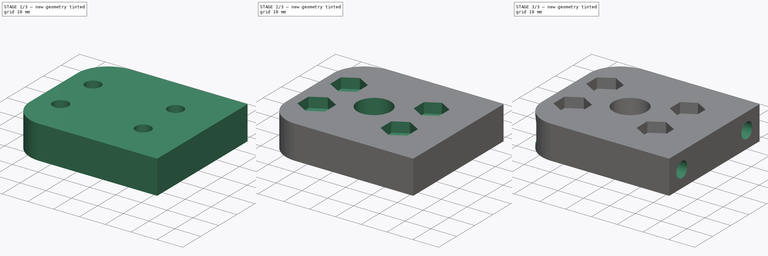
[diagram: build sequence overview — one tinted view per stage of 3, left to right]
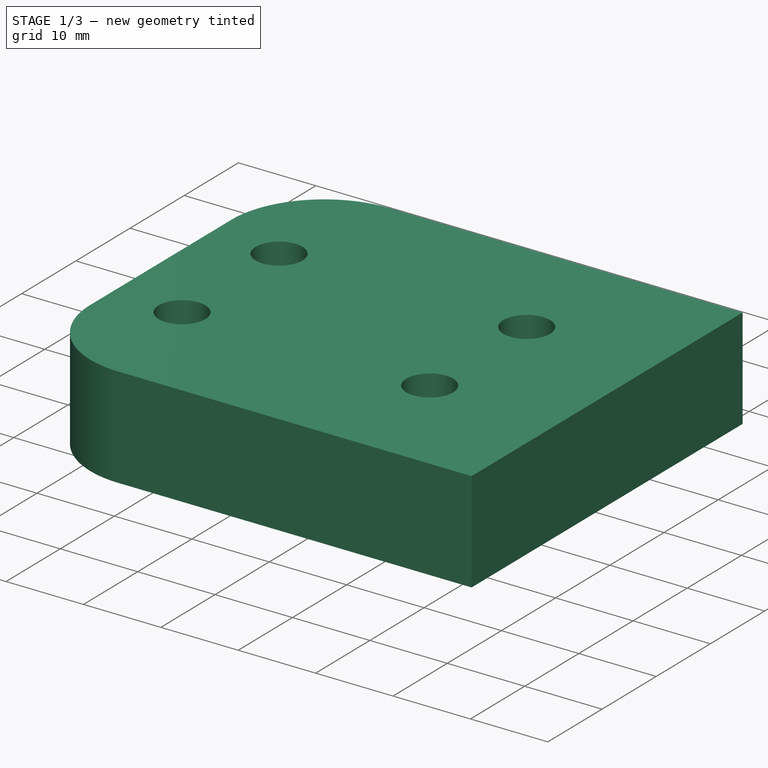
[diagram: stage 1 of 3 — iso view after this stage's code; geometry added in this stage tinted green]
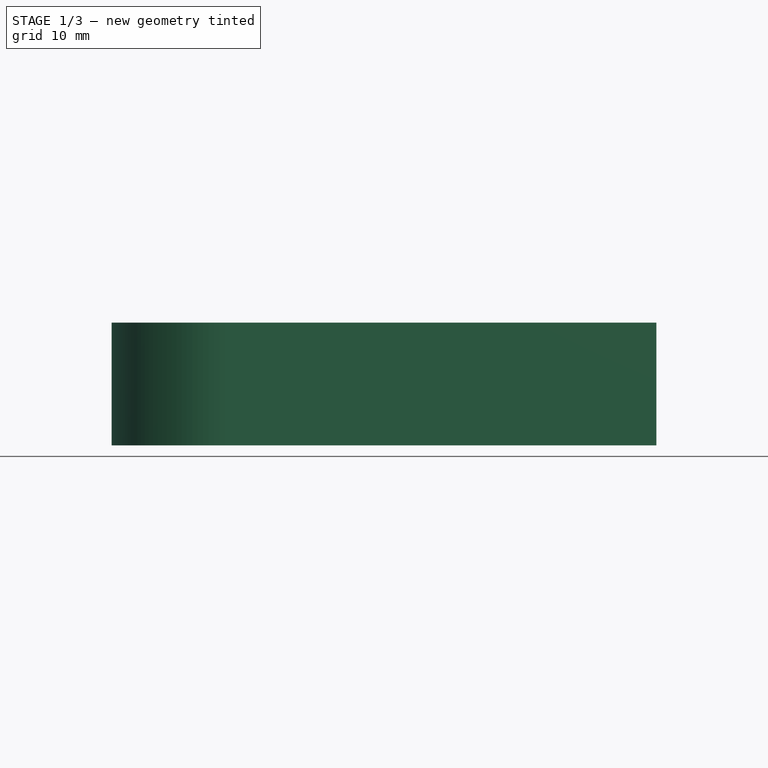
[diagram: stage 1 of 3 — front view after this stage's code; geometry added in this stage tinted green]
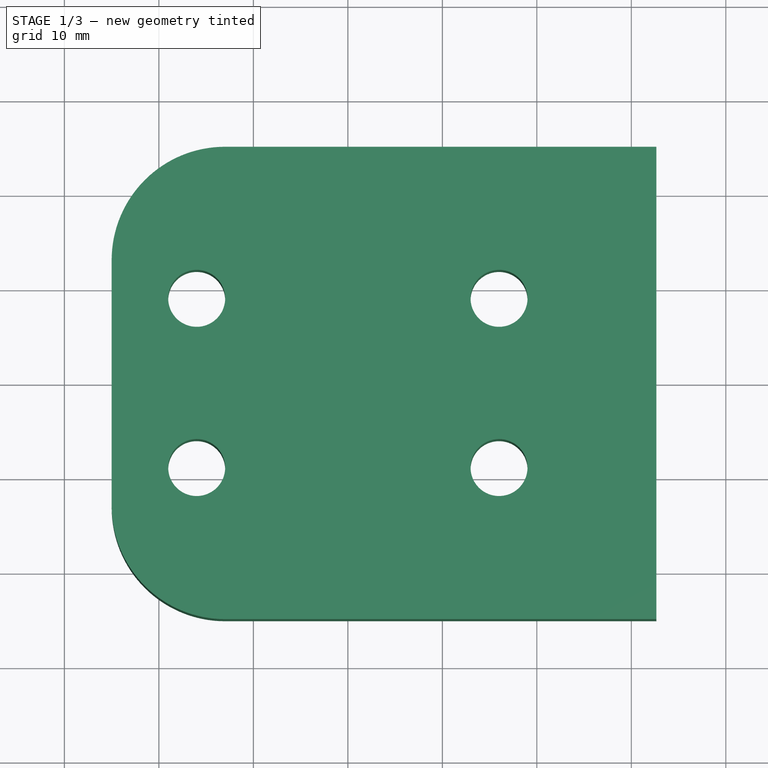
[diagram: stage 1 of 3 — top view after this stage's code; geometry added in this stage tinted green]
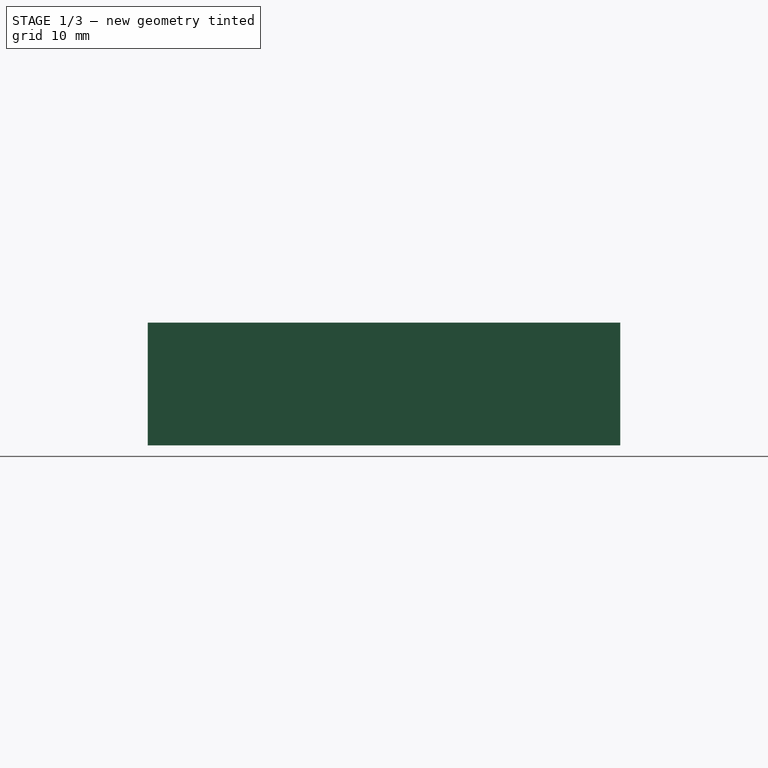
[diagram: stage 1 of 3 — right view after this stage's code; geometry added in this stage tinted green]
FCSTD DOCUMENT  (FreeCAD 0.20R29410 (Git))
Label: MainScrewLeadNutHolderSides
License: All rights reserved
LicenseURL: http://en.wikipedia.org/wiki/All_rights_reserved
objects: Sketcher::SketchObject×7, PartDesign::Pocket×6, PartDesign::Pad×1, PartDesign::Fillet×1, PartDesign::Body×1
note: 24 computed .brp shape members not serialized (recipe doc carries the construction recipe); baked Part::Feature solids carry a one-line shape summary decoded from their .brp

FEATURE [Sketcher::SketchObject] Sketch008
  FullyConstrained = true
  MapMode = 5
  Support = -> [XY_Plane001]
  sketch-geometry (7):
    g0: LineSegment StartX=-25 StartY=25 StartZ=0 EndX=32.65 EndY=25 EndZ=0
    g1: LineSegment StartX=32.65 StartY=25 StartZ=0 EndX=32.65 EndY=-25 EndZ=0
    g2: LineSegment StartX=32.65 StartY=-25 StartZ=0 EndX=-25 EndY=-25 EndZ=0
    g3: LineSegment StartX=-25 StartY=-25 StartZ=0 EndX=-25 EndY=25 EndZ=0
    g4: LineSegment StartX=0 StartY=2e-16 StartZ=0 EndX=0 EndY=25 EndZ=0
    g5: LineSegment StartX=0 StartY=2e-16 StartZ=0 EndX=-25 EndY=2e-16 EndZ=0
    g6: LineSegment StartX=0 StartY=2e-16 StartZ=0 EndX=0 EndY=-25 EndZ=0
  constraints (21):
    c: Coincident(g0,g1)
    c: Coincident(g1,g2)
    c: Coincident(g2,g3)
    c: Coincident(g3,g0)
    c: Horizontal(g0)
    c: Horizontal(g2)
    c: Vertical(g1)
    c: Vertical(g3)
    c: DistanceX(g0,g0) = 57.65
    c: DistanceY(g3,g3) = 50
    c: Coincident(g4,g-1)
    c: PointOnObject(g4,g0)
    c: Vertical(g4)
    c: Coincident(g5,g4)
    c: PointOnObject(g5,g3)
    c: Horizontal(g5)
    c: Equal(g4,g5)
    c: Coincident(g6,g4)
    c: PointOnObject(g6,g2)
    c: Vertical(g6)
    c: Equal(g4,g6)
FEATURE [PartDesign::Pad] Pad
  Direction = (0,0,1)
  Length = 13
  Length2 = 10
  Profile = -> Sketch008
  ReferenceAxis = -> Sketch008 [N_Axis]
  Type = 0
FEATURE [Sketcher::SketchObject] Sketch009
  FullyConstrained = false
  MapMode = 5
  Placement = pos=(0,0,23.5) rot=(0,0,1;0rad)
  sketch-geometry (10):
    g0: Circle CenterX=-16 CenterY=8.955 CenterZ=0 NormalX=0 NormalY=0 NormalZ=1 AngleXU=0 Radius=3.015
    g1: Circle CenterX=-16 CenterY=-8.955 CenterZ=0 NormalX=0 NormalY=0 NormalZ=1 AngleXU=0 Radius=3.015
    g2: Circle CenterX=16 CenterY=8.955 CenterZ=0 NormalX=0 NormalY=0 NormalZ=1 AngleXU=0 Radius=3.015
    g3: Circle CenterX=16 CenterY=-8.955 CenterZ=0 NormalX=0 NormalY=0 NormalZ=1 AngleXU=0 Radius=3.015
    g4: GeomPoint X=-16 Y=1e-16 Z=0
    g5: GeomPoint X=-1.1e-15 Y=8.955 Z=0
    g6: Circle CenterX=-25 CenterY=15.985 CenterZ=0 NormalX=0 NormalY=0 NormalZ=1 AngleXU=0 Radius=3.015
    g7: LineSegment StartX=-25 StartY=19 StartZ=0 EndX=-25 EndY=25 EndZ=0
    g8: GeomPoint X=-25 Y=12.97 Z=0
    g9: LineSegment StartX=-16 StartY=8.955 StartZ=0 EndX=-16 EndY=11.97 EndZ=0
  constraints (17):
    c: Symmetric(g0,g1,g4)
    c: Symmetric(g0,g2,g5)
    c: Equal(g0,g2)
    c: Equal(g2,g3)
    c: Equal(g3,g1)
    c: Diameter(g2) = 6.03
    c: Equal(g0,g6)
    c: Diameter(g0) = 6.03
    c: PointOnObject(g7,g6)
    c: Vertical(g7)
    c: PointOnObject(g8,g6)
    c: Coincident(g9,g0)
    c: PointOnObject(g9,g0)
    c: Vertical(g9)
    c: DistanceY(g9,g8) = 1
    c: DistanceY(g7,g7) = 6
    c: DistanceX(g7,g0) = 9
FEATURE [PartDesign::Pocket] Pocket
  BaseFeature = -> Pad
  Direction = (0,0,-1)
  Length = 27
  Length2 = 5
  Profile = -> Sketch009
  ReferenceAxis = -> Sketch009 [N_Axis]
  Type = 1
FEATURE [PartDesign::Fillet] Fillet
  Base = -> Pocket [Edge1,Edge5]
  BaseFeature = -> Pocket
  Radius = 12
  SupportTransform = false
  UseAllEdges = false
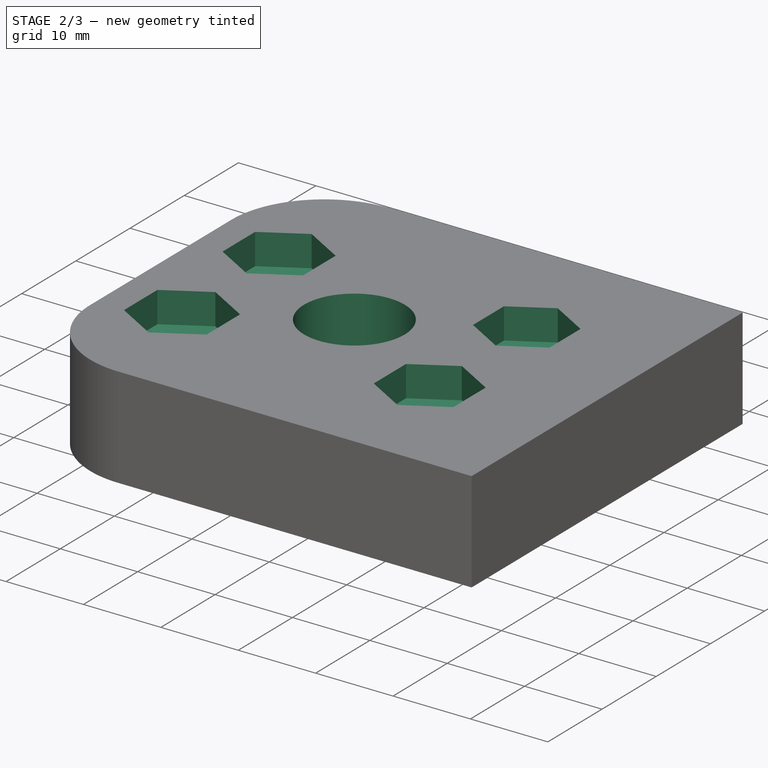
[diagram: stage 2 of 3 — iso view after this stage's code; geometry added in this stage tinted green]
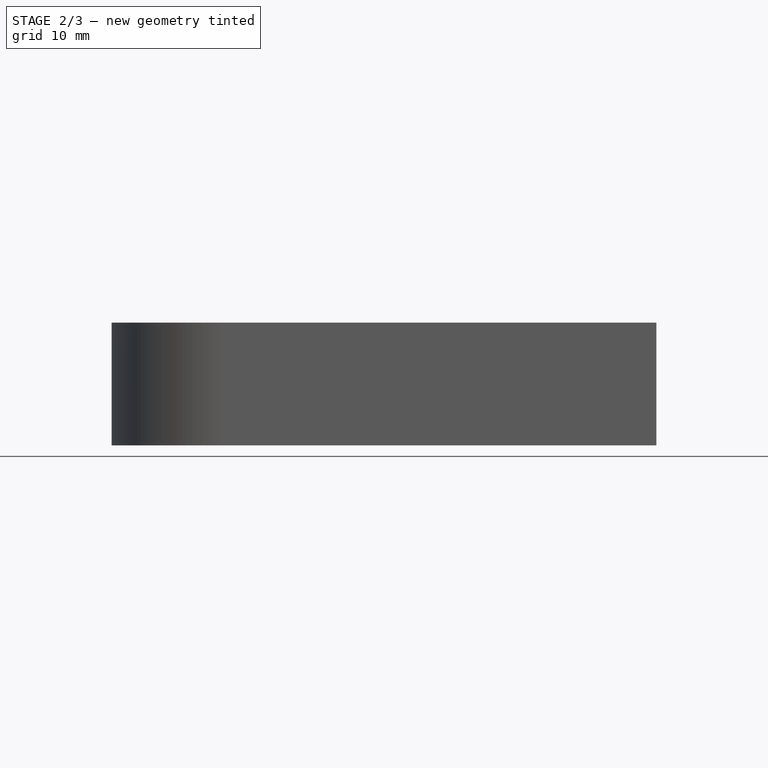
[diagram: stage 2 of 3 — front view after this stage's code; geometry added in this stage tinted green]
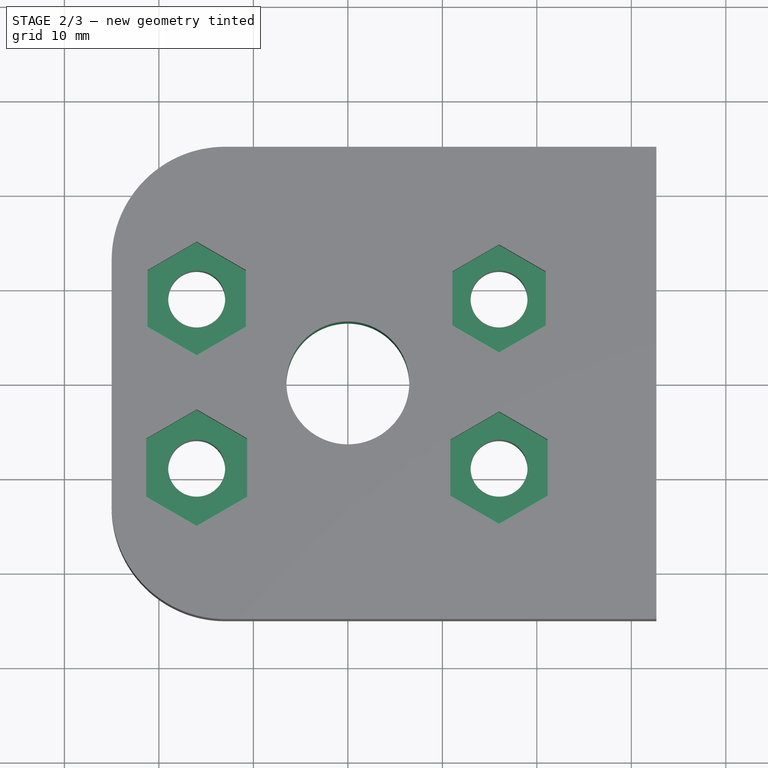
[diagram: stage 2 of 3 — top view after this stage's code; geometry added in this stage tinted green]
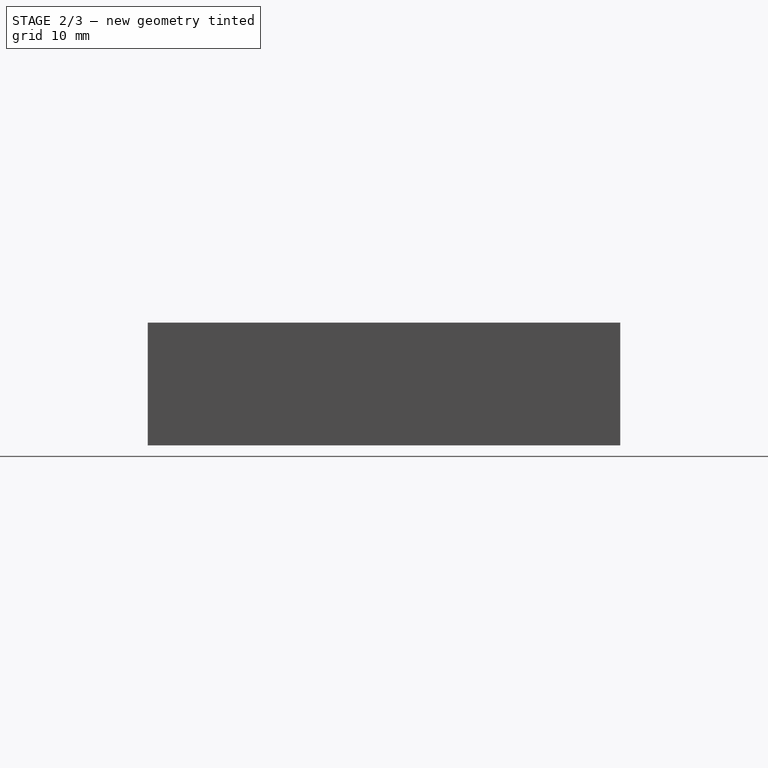
[diagram: stage 2 of 3 — right view after this stage's code; geometry added in this stage tinted green]
FEATURE [Sketcher::SketchObject] Sketch
  FullyConstrained = true
  MapMode = 5
  Placement = pos=(0,0,13) rot=(0,0,1;0rad)
  Support = -> [Fillet]
  sketch-geometry (1):
    g0: Circle CenterX=0 CenterY=0 CenterZ=0 NormalX=0 NormalY=0 NormalZ=1 AngleXU=0 Radius=6.5
  constraints (2):
    c: Coincident(g0,g-1)
    c: Diameter(g0) = 13
FEATURE [PartDesign::Pocket] Pocket001
  BaseFeature = -> Fillet
  Direction = (0,0,-1)
  Length = 5
  Length2 = 5
  Profile = -> Sketch
  ReferenceAxis = -> Sketch [N_Axis]
  Type = 1
FEATURE [Sketcher::SketchObject] Sketch010
  ExternalGeometry = -> [Pocket001]
  FullyConstrained = false
  MapMode = 5
  Placement = pos=(0,0,13) rot=(0,0,1;0rad)
  Support = -> [Pocket001]
  sketch-geometry (28):
    g0: LineSegment StartX=-10.8 StartY=11.9572 StartZ=0 EndX=-16 EndY=14.9594 EndZ=0
    g1: LineSegment StartX=-16 StartY=14.9594 StartZ=0 EndX=-21.2 EndY=11.9572 EndZ=0
    g2: LineSegment StartX=-21.2 StartY=11.9572 StartZ=0 EndX=-21.2 EndY=5.95278 EndZ=0
    g3: LineSegment StartX=-21.2 StartY=5.95278 StartZ=0 EndX=-16 EndY=2.95056 EndZ=0
    g4: LineSegment StartX=-16 StartY=2.95056 StartZ=0 EndX=-10.8 EndY=5.95278 EndZ=0
    g5: LineSegment StartX=-10.8 StartY=5.95278 StartZ=0 EndX=-10.8 EndY=11.9572 EndZ=0
    g6: Circle CenterX=-16 CenterY=8.955 CenterZ=0 NormalX=0 NormalY=0 NormalZ=1 AngleXU=0 Radius=6.00444
    g7: LineSegment StartX=20.9448 StartY=11.8099 StartZ=0 EndX=16 EndY=14.6648 EndZ=0
    g8: LineSegment StartX=16 StartY=14.6648 StartZ=0 EndX=11.0552 EndY=11.8099 EndZ=0
    g9: LineSegment StartX=11.0552 StartY=11.8099 StartZ=0 EndX=11.0552 EndY=6.10011 EndZ=0
    g10: LineSegment StartX=11.0552 StartY=6.10011 StartZ=0 EndX=16 EndY=3.24522 EndZ=0
    g11: LineSegment StartX=16 StartY=3.24522 StartZ=0 EndX=20.9448 EndY=6.10011 EndZ=0
    g12: LineSegment StartX=20.9448 StartY=6.10011 StartZ=0 EndX=20.9448 EndY=11.8099 EndZ=0
    g13: Circle CenterX=16 CenterY=8.955 CenterZ=0 NormalX=0 NormalY=0 NormalZ=1 AngleXU=0 Radius=5.70978
    g14: LineSegment StartX=-10.6627 StartY=-5.87349 StartZ=0 EndX=-16 EndY=-2.79199 EndZ=0
    g15: LineSegment StartX=-16 StartY=-2.79199 StartZ=0 EndX=-21.3373 EndY=-5.87349 EndZ=0
    g16: LineSegment StartX=-21.3373 StartY=-5.87349 StartZ=0 EndX=-21.3373 EndY=-12.0365 EndZ=0
    g17: LineSegment StartX=-21.3373 StartY=-12.0365 StartZ=0 EndX=-16 EndY=-15.118 EndZ=0
    g18: LineSegment StartX=-16 StartY=-15.118 StartZ=0 EndX=-10.6627 EndY=-12.0365 EndZ=0
    g19: LineSegment StartX=-10.6627 StartY=-12.0365 StartZ=0 EndX=-10.6627 EndY=-5.87349 EndZ=0
    g20: Circle CenterX=-16 CenterY=-8.955 CenterZ=0 NormalX=0 NormalY=0 NormalZ=1 AngleXU=0 Radius=6.16301
    g21: LineSegment StartX=21.1465 StartY=-5.98365 StartZ=0 EndX=16 EndY=-3.0123 EndZ=0
    g22: LineSegment StartX=16 StartY=-3.0123 StartZ=0 EndX=10.8535 EndY=-5.98365 EndZ=0
    g23: LineSegment StartX=10.8535 StartY=-5.98365 StartZ=0 EndX=10.8535 EndY=-11.9263 EndZ=0
    g24: LineSegment StartX=10.8535 StartY=-11.9263 StartZ=0 EndX=16 EndY=-14.8977 EndZ=0
    g25: LineSegment StartX=16 StartY=-14.8977 StartZ=0 EndX=21.1465 EndY=-11.9263 EndZ=0
    g26: LineSegment StartX=21.1465 StartY=-11.9263 StartZ=0 EndX=21.1465 EndY=-5.98365 EndZ=0
    g27: Circle CenterX=16 CenterY=-8.955 CenterZ=0 NormalX=0 NormalY=0 NormalZ=1 AngleXU=0 Radius=5.9427
  constraints (61):
    c: Coincident(g0,g1)
    c: Coincident(g1,g2)
    c: Coincident(g2,g3)
    c: Coincident(g3,g4)
    c: Coincident(g4,g5)
    c: Coincident(g5,g0)
    c: Equal(g0, g1-g5) x5
    c: PointOnObject(g0,g6)
    c: PointOnObject(g1,g6)
    c: PointOnObject(g2,g6)
    c: PointOnObject(g3,g6)
    c: PointOnObject(g4,g6)
    c: PointOnObject(g5,g6)
    c: Coincident(g6,g-3)
    c: Coincident(g7,g8)
    c: Coincident(g8,g9)
    c: Coincident(g9,g10)
    c: Coincident(g10,g11)
    c: Coincident(g11,g12)
    c: Coincident(g12,g7)
    c: Equal(g7, g8-g12) x5
    c: PointOnObject(g7,g13)
    c: PointOnObject(g8,g13)
    c: PointOnObject(g9,g13)
    c: PointOnObject(g10,g13)
    c: PointOnObject(g11,g13)
    c: PointOnObject(g12,g13)
    c: Coincident(g13,g-4)
    c: Coincident(g14,g15)
    c: Coincident(g15,g16)
    c: Coincident(g16,g17)
    c: Coincident(g17,g18)
    c: Coincident(g18,g19)
    c: Coincident(g19,g14)
    c: Equal(g14, g15-g19) x5
    c: PointOnObject(g14,g20)
    c: PointOnObject(g15,g20)
    c: PointOnObject(g16,g20)
    c: PointOnObject(g17,g20)
    c: PointOnObject(g18,g20)
    c: PointOnObject(g19,g20)
    c: Coincident(g20,g-5)
    c: Coincident(g21,g22)
    c: Coincident(g22,g23)
    c: Coincident(g23,g24)
    c: Coincident(g24,g25)
    c: Coincident(g25,g26)
    c: Coincident(g26,g21)
    c: Equal(g21, g22-g26) x5
    c: PointOnObject(g21,g27)
    c: PointOnObject(g22,g27)
    c: PointOnObject(g23,g27)
    c: PointOnObject(g24,g27)
    c: PointOnObject(g25,g27)
    c: PointOnObject(g26,g27)
    c: Coincident(g27,g-6)
    c: Vertical(g2)
    c: Vertical(g16)
    c: Vertical(g9)
    c: Vertical(g23)
    c: DistanceX(g1,g0) = 10.4
FEATURE [PartDesign::Pocket] Pocket002
  BaseFeature = -> Pocket001
  Direction = (0,0,-1)
  Length = 4
  Length2 = 5
  Profile = -> Sketch010
  ReferenceAxis = -> Sketch010 [N_Axis]
  Type = 0
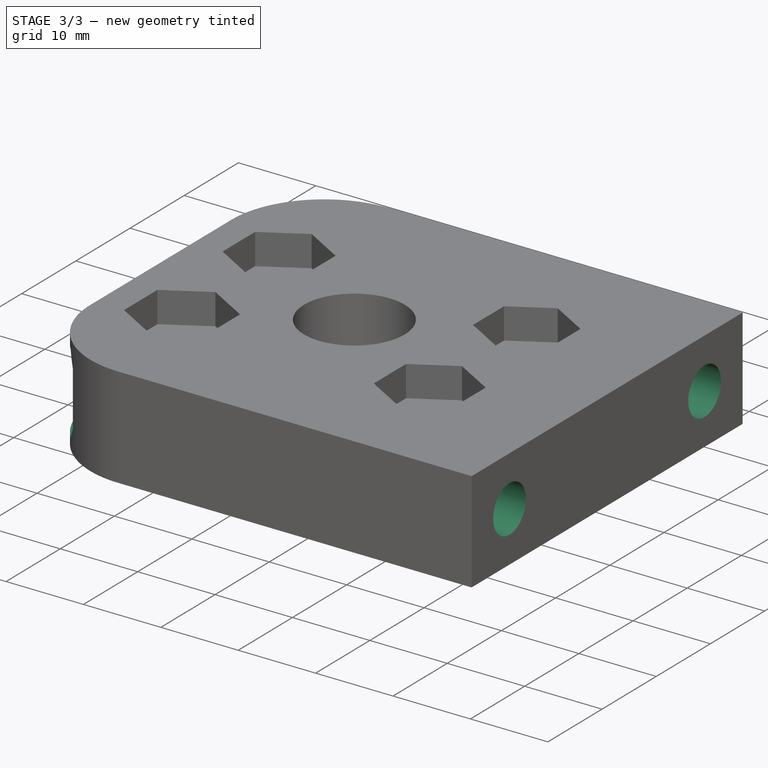
[diagram: stage 3 of 3 — iso view after this stage's code; geometry added in this stage tinted green]
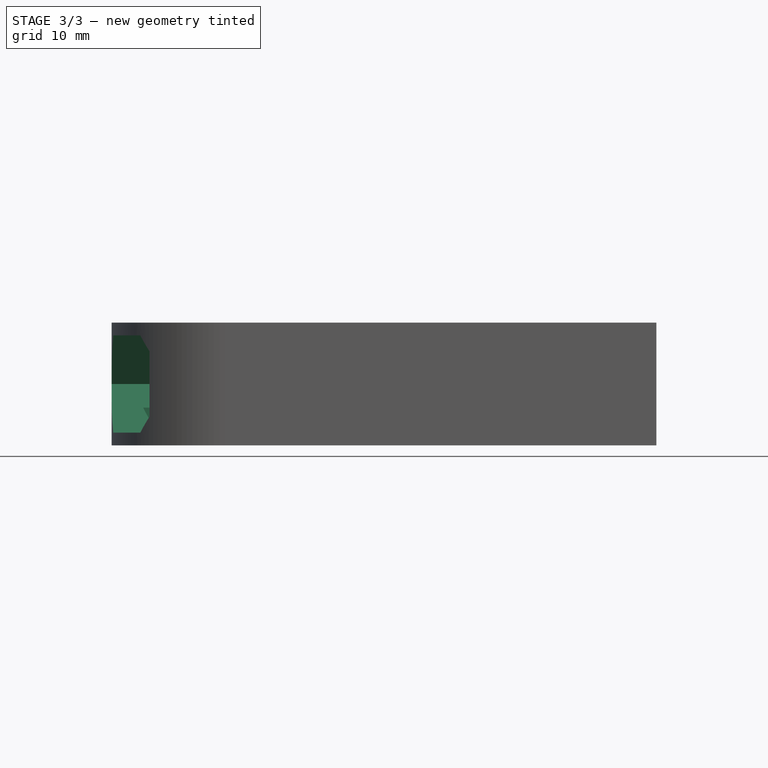
[diagram: stage 3 of 3 — front view after this stage's code; geometry added in this stage tinted green]
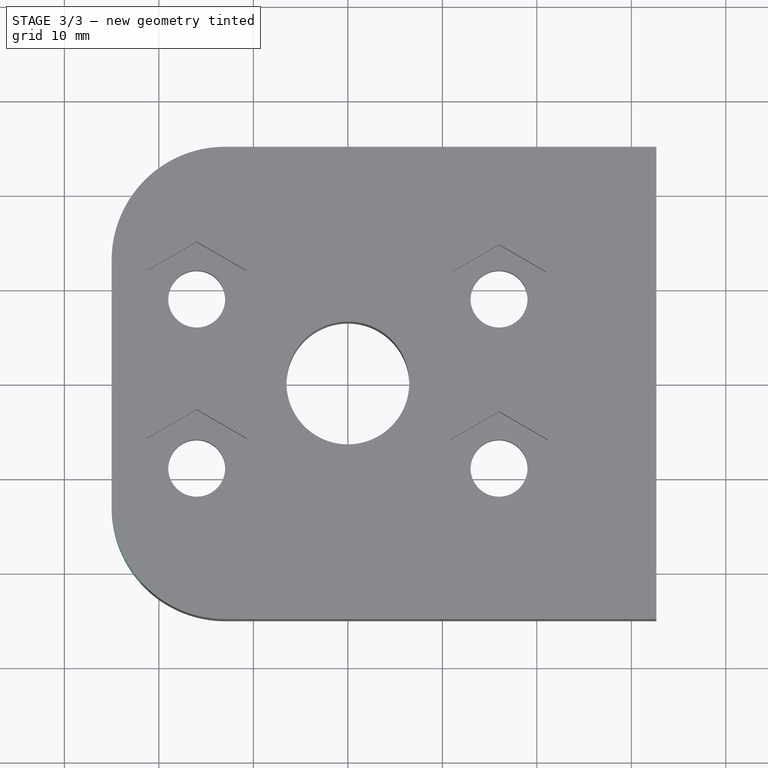
[diagram: stage 3 of 3 — top view after this stage's code; geometry added in this stage tinted green]
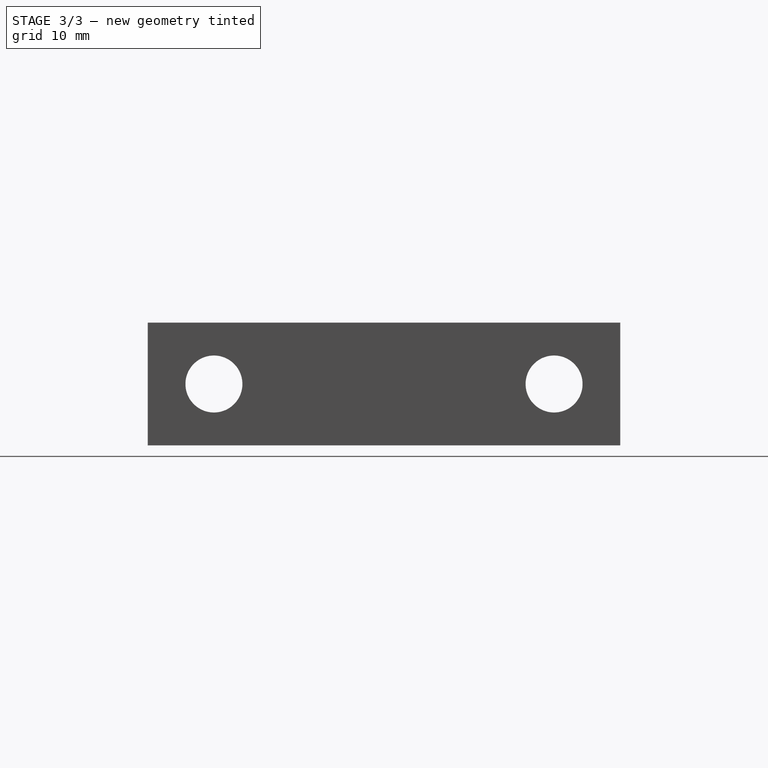
[diagram: stage 3 of 3 — right view after this stage's code; geometry added in this stage tinted green]
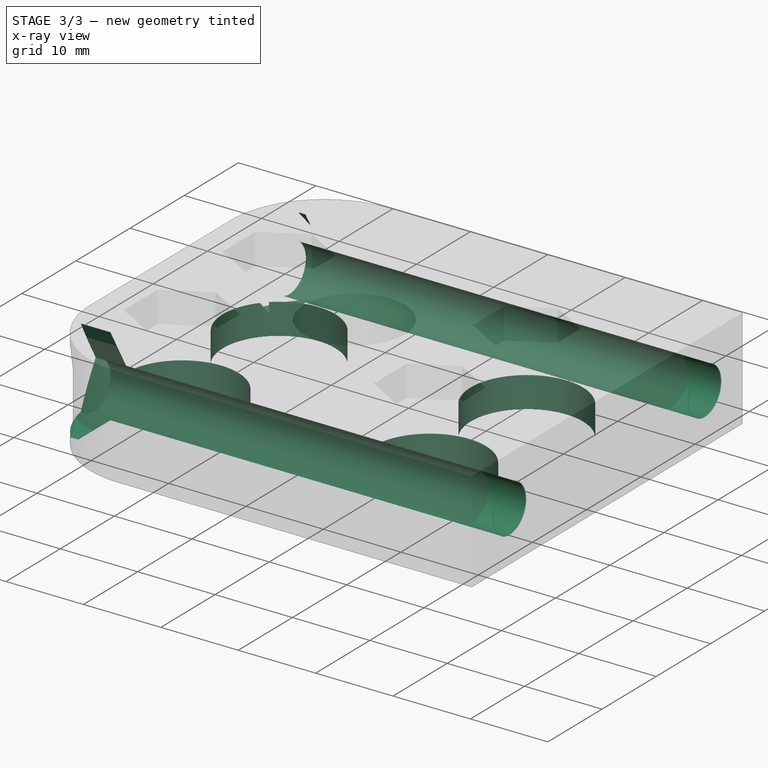
[diagram: stage 3 of 3 — x-ray composite at the iso view; earlier geometry ghosted, this stage's added geometry solid]
FEATURE [Sketcher::SketchObject] Sketch011
  ExternalGeometry = -> [Pocket002]
  FullyConstrained = true
  MapMode = 5
  Placement = pos=(0,0,0) rot=(1,0,0;3.14159rad)
  Support = -> [Pocket002]
  sketch-geometry (4):
    g0: Circle CenterX=-16 CenterY=8.955 CenterZ=0 NormalX=0 NormalY=0 NormalZ=1 AngleXU=0 Radius=7.25
    g1: Circle CenterX=16 CenterY=8.955 CenterZ=0 NormalX=0 NormalY=0 NormalZ=1 AngleXU=0 Radius=7.25
    g2: Circle CenterX=-16 CenterY=-8.955 CenterZ=0 NormalX=0 NormalY=0 NormalZ=1 AngleXU=0 Radius=7.25
    g3: Circle CenterX=16 CenterY=-8.955 CenterZ=0 NormalX=0 NormalY=0 NormalZ=1 AngleXU=0 Radius=7.25
  constraints (8):
    c: Coincident(g0,g-3)
    c: Coincident(g1,g-4)
    c: Coincident(g2,g-5)
    c: Coincident(g3,g-6)
    c: Diameter(g0) = 14.5
    c: Equal(g0,g1)
    c: Equal(g1,g2)
    c: Equal(g2,g3)
FEATURE [PartDesign::Pocket] Pocket003
  BaseFeature = -> Pocket002
  Direction = (0,0,1)
  Length = 4
  Length2 = 5
  Profile = -> Sketch011
  ReferenceAxis = -> Sketch011 [N_Axis]
  Type = 0
FEATURE [Sketcher::SketchObject] Sketch012
  ExternalGeometry = -> [Pocket003]
  FullyConstrained = true
  MapMode = 5
  Placement = pos=(32.65,0,0) rot=(0.57735,0.57735,0.57735;2.0944rad)
  Support = -> [Pocket003]
  sketch-geometry (5):
    g0: Circle CenterX=18 CenterY=6.5 CenterZ=0 NormalX=0 NormalY=0 NormalZ=1 AngleXU=0 Radius=3.015
    g1: Circle CenterX=-18 CenterY=6.5 CenterZ=0 NormalX=0 NormalY=0 NormalZ=1 AngleXU=0 Radius=3.015
    g2: LineSegment StartX=18 StartY=6.5 StartZ=0 EndX=25 EndY=6.5 EndZ=0
    g3: LineSegment StartX=-18 StartY=6.5 StartZ=0 EndX=18 EndY=6.5 EndZ=0
    g4: LineSegment StartX=-18 StartY=6.5 StartZ=0 EndX=-25 EndY=6.5 EndZ=0
  constraints (14):
    c: Equal(g1,g0)
    c: Diameter(g0) = 6.03
    c: DistanceX(g0,g-7) = 7
    c: Coincident(g2,g0)
    c: Horizontal(g2)
    c: Symmetric(g-7,g-8,g2)
    c: Coincident(g3,g1)
    c: Coincident(g3,g0)
    c: Horizontal(g3)
    c: Coincident(g4,g1)
    c: PointOnObject(g4,g-9)
    c: Horizontal(g4)
    c: Equal(g4,g2)
    c: DistanceX(g-3,g-3) = 6.03
FEATURE [PartDesign::Pocket] Pocket004
  BaseFeature = -> Pocket003
  Direction = (-1,0,0)
  Length = 5
  Length2 = 5
  Profile = -> Sketch012
  ReferenceAxis = -> Sketch012 [N_Axis]
  Type = 1
FEATURE [Sketcher::SketchObject] Sketch013
  ExternalGeometry = -> [Pocket004]
  FullyConstrained = true
  MapMode = 5
  Placement = pos=(-25,0,0) rot=(0.57735,-0.57735,-0.57735;2.0944rad)
  Support = -> [Pocket004]
  sketch-geometry (14):
    g0: LineSegment StartX=-12.0533 StartY=6.5 StartZ=0 EndX=-15.0266 EndY=11.65 EndZ=0
    g1: LineSegment StartX=-15.0266 StartY=11.65 StartZ=0 EndX=-20.9734 EndY=11.65 EndZ=0
    g2: LineSegment StartX=-20.9734 StartY=11.65 StartZ=0 EndX=-23.9467 EndY=6.5 EndZ=0
    g3: LineSegment StartX=-23.9467 StartY=6.5 StartZ=0 EndX=-20.9734 EndY=1.35 EndZ=0
    g4: LineSegment StartX=-20.9734 StartY=1.35 StartZ=0 EndX=-15.0266 EndY=1.35 EndZ=0
    g5: LineSegment StartX=-15.0266 StartY=1.35 StartZ=0 EndX=-12.0533 EndY=6.5 EndZ=0
    g6: Circle CenterX=-18 CenterY=6.5 CenterZ=0 NormalX=0 NormalY=0 NormalZ=1 AngleXU=0 Radius=5.94671
    g7: LineSegment StartX=23.9467 StartY=6.5 StartZ=0 EndX=20.9734 EndY=11.65 EndZ=0
    g8: LineSegment StartX=20.9734 StartY=11.65 StartZ=0 EndX=15.0266 EndY=11.65 EndZ=0
    g9: LineSegment StartX=15.0266 StartY=11.65 StartZ=0 EndX=12.0533 EndY=6.5 EndZ=0
    g10: LineSegment StartX=12.0533 StartY=6.5 StartZ=0 EndX=15.0266 EndY=1.35 EndZ=0
    g11: LineSegment StartX=15.0266 StartY=1.35 StartZ=0 EndX=20.9734 EndY=1.35 EndZ=0
    g12: LineSegment StartX=20.9734 StartY=1.35 StartZ=0 EndX=23.9467 EndY=6.5 EndZ=0
    g13: Circle CenterX=18 CenterY=6.5 CenterZ=0 NormalX=0 NormalY=0 NormalZ=1 AngleXU=0 Radius=5.94671
  constraints (32):
    c: Coincident(g0,g1)
    c: Coincident(g1,g2)
    c: Coincident(g2,g3)
    c: Coincident(g3,g4)
    c: Coincident(g4,g5)
    c: Coincident(g5,g0)
    c: Equal(g0, g1-g5) x5
    c: PointOnObject(g0,g6)
    c: PointOnObject(g1,g6)
    c: PointOnObject(g2,g6)
    c: PointOnObject(g3,g6)
    c: PointOnObject(g4,g6)
    c: PointOnObject(g5,g6)
    c: Coincident(g6,g-3)
    c: Coincident(g7,g8)
    c: Coincident(g8,g9)
    c: Coincident(g9,g10)
    c: Coincident(g10,g11)
    c: Coincident(g11,g12)
    c: Coincident(g12,g7)
    c: Equal(g7, g8-g12) x5
    c: PointOnObject(g7,g13)
    c: PointOnObject(g8,g13)
    c: PointOnObject(g9,g13)
    c: PointOnObject(g10,g13)
    c: PointOnObject(g11,g13)
    c: PointOnObject(g12,g13)
    c: Coincident(g13,g-4)
    c: Horizontal(g8)
    c: Horizontal(g1)
    c: DistanceY(g3,g1) = 10.3
    c: Equal(g6,g13)
FEATURE [PartDesign::Pocket] Pocket005
  BaseFeature = -> Pocket004
  Direction = (1,0,0)
  Length = 4
  Length2 = 5
  Profile = -> Sketch013
  ReferenceAxis = -> Sketch013 [N_Axis]
  Type = 0
FEATURE [PartDesign::Body] Body001
  Group = -> [Sketch008,Pad,Sketch009,Pocket,Fillet,Sketch,Pocket001,Sketch010,Pocket002,Sketch011,Pocket003,Sketch012,Pocket004,Sketch013,Pocket005]
  Origin = -> Origin001
  Tip = -> Pocket005
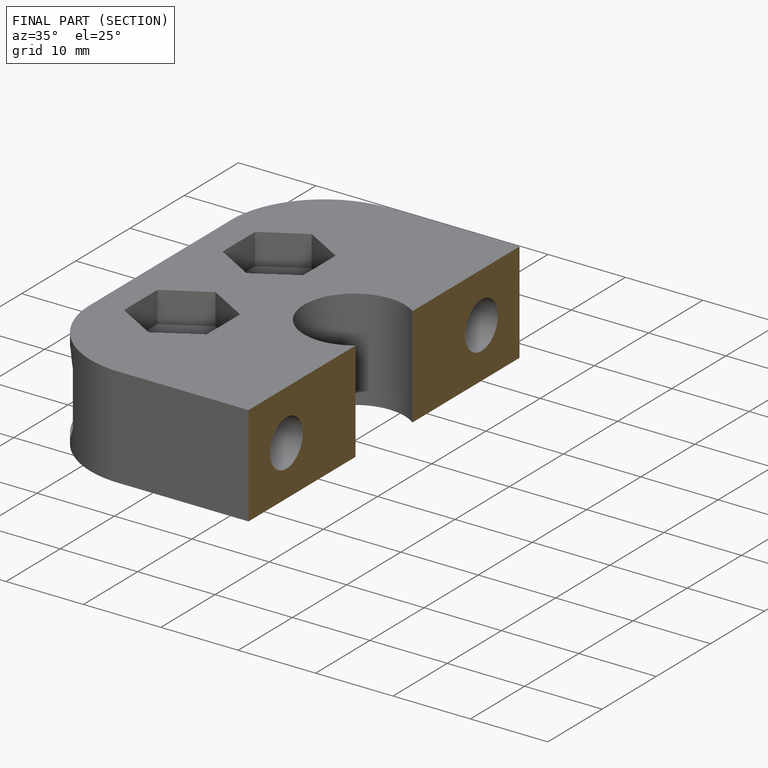
[diagram: finished part — half-section view (interior)]
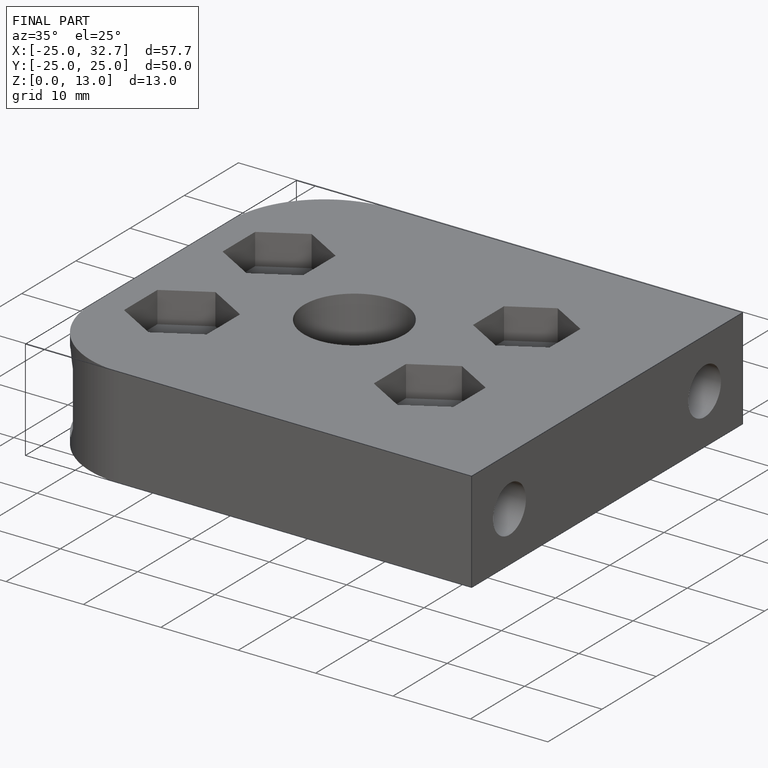
[diagram: finished part — iso view with bounding-box wireframe]
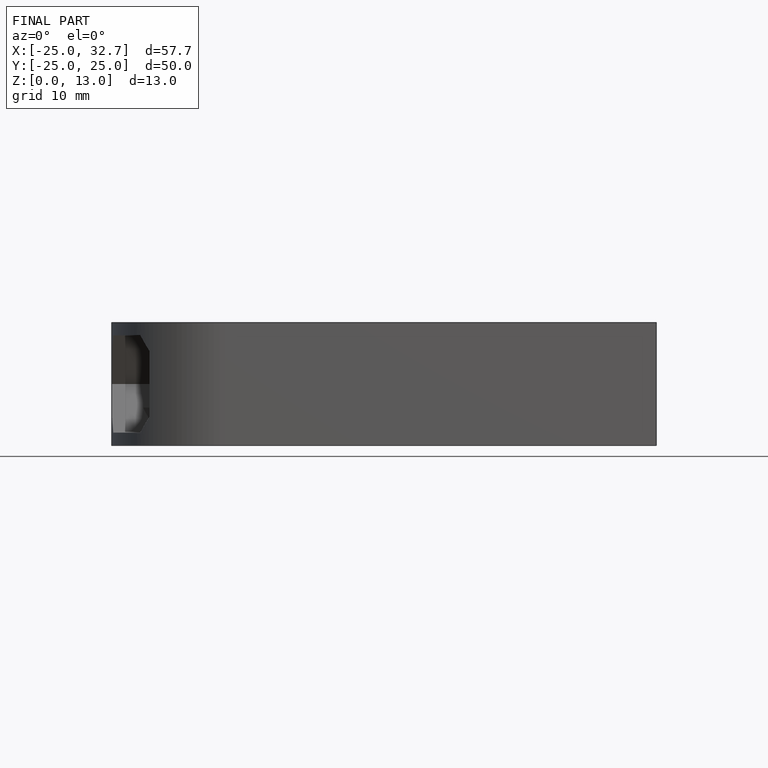
[diagram: finished part — front view with bounding-box wireframe]
